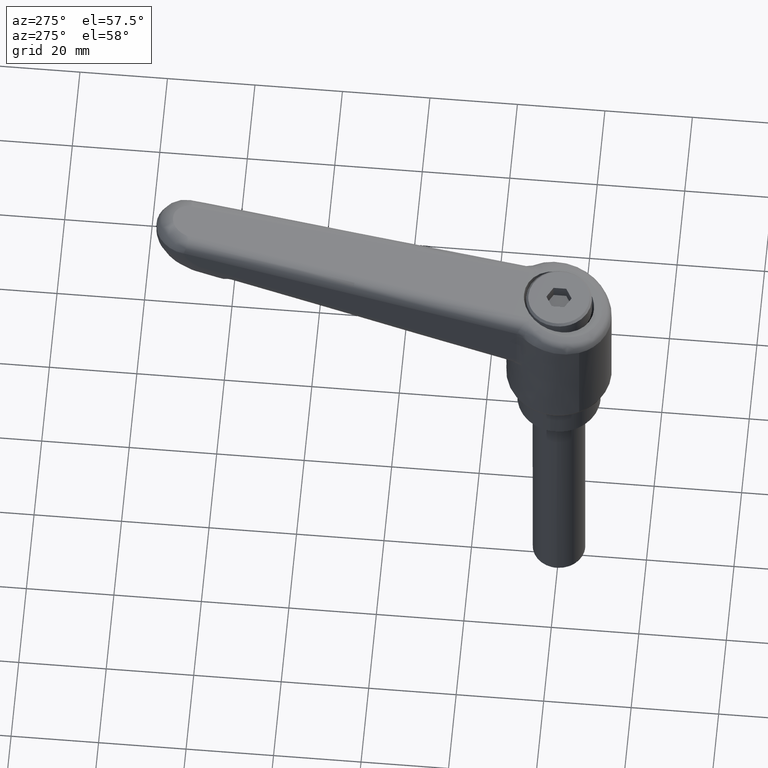
[diagram: clean part render]
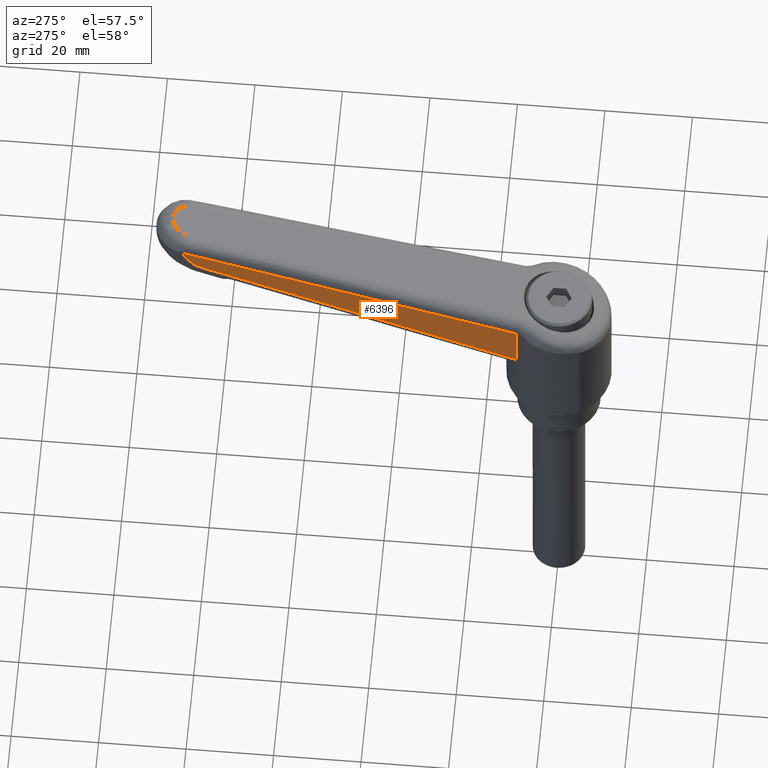
[diagram: same view with one face highlighted and labeled with its STEP entity id]
A machine part, auxiliary view. The second image highlights one B-rep face of the part: STEP entity #6396.
In plain terms, the highlighted face is a freeform B-spline surface patch.
Its self-contained STEP definition (entity closure, byte-faithful):
#4758=CARTESIAN_POINT('',(8.841669019642421,8.976546322690471,40.397985290362151));
#4759=VERTEX_POINT('',#4758);
#4860=CARTESIAN_POINT('',(8.958806641274091,8.973509853765771,39.498216051846100));
#4861=VERTEX_POINT('',#4860);
#4883=CARTESIAN_POINT('',(8.958806641274091,8.973509853765771,39.498216051846100));
#4884=CARTESIAN_POINT('',(8.958806641274091,8.973509853765771,39.803225784668513));
#4885=CARTESIAN_POINT('',(8.920304614572336,8.974507912339861,40.103219713197440));
#4886=CARTESIAN_POINT('',(8.841669019642412,8.976546322690471,40.397985290362151));
#4887=QUASI_UNIFORM_CURVE('',3,(#4883,#4884,#4885,#4886),.UNSPECIFIED.,.F.,.U.);
#4888=EDGE_CURVE('',#4861,#4759,#4887,.T.);
#4907=CARTESIAN_POINT('',(8.958806641274080,8.973509853765771,29.466439365079001));
#4908=VERTEX_POINT('',#4907);
#4924=CARTESIAN_POINT('',(8.958806641274080,8.973509853765771,29.466439365079001));
#4925=CARTESIAN_POINT('',(8.958806641274091,8.973509853765771,39.498216051846100));
#4926=QUASI_UNIFORM_CURVE('',1,(#4924,#4925),.UNSPECIFIED.,.F.,.U.);
#4927=EDGE_CURVE('',#4908,#4861,#4926,.T.);
#5551=CARTESIAN_POINT('',(81.389620479773200,7.095941295112780,55.828869491423298));
#5552=VERTEX_POINT('',#5551);
#5746=CARTESIAN_POINT('',(85.181394708208785,6.997650033486260,60.297485300990608));
#5747=VERTEX_POINT('',#5746);
#5775=CARTESIAN_POINT('',(85.181394708208785,6.997650033486113,60.297485300990608));
#5776=CARTESIAN_POINT('',(84.165023899907837,7.023996636160682,57.316877556528574));
#5777=CARTESIAN_POINT('',(81.389620479773200,7.095941295112628,55.828869491423291));
#5785=(BOUNDED_CURVE()B_SPLINE_CURVE(2,(#5775,#5776,#5777),.UNSPECIFIED.,.F.,.U.)CURVE()GEOMETRIC_REPRESENTATION_ITEM()QUASI_UNIFORM_CURVE()RATIONAL_B_SPLINE_CURVE((1.0,0.930502890215521,1.0))REPRESENTATION_ITEM(''));
#5786=EDGE_CURVE('',#5747,#5552,#5785,.T.);
#5856=CARTESIAN_POINT('',(81.389620479773200,7.095941295112780,55.828869491423298));
#5857=CARTESIAN_POINT('',(8.958806641274080,8.973509853765771,29.466439365079001));
#5858=QUASI_UNIFORM_CURVE('',1,(#5856,#5857),.UNSPECIFIED.,.F.,.U.);
#5859=EDGE_CURVE('',#5552,#4908,#5858,.T.);
#6229=CARTESIAN_POINT('',(85.181394708208785,6.997650033486260,60.950987970872312));
#6230=VERTEX_POINT('',#6229);
#6296=CARTESIAN_POINT('',(8.841669019642421,8.976546322690471,40.397985290362151));
#6297=CARTESIAN_POINT('',(85.181394708208785,6.997650033486260,60.950987970872312));
#6298=QUASI_UNIFORM_CURVE('',1,(#6296,#6297),.UNSPECIFIED.,.F.,.U.);
#6299=EDGE_CURVE('',#4759,#6230,#6298,.T.);
#6335=CARTESIAN_POINT('',(85.181394708208785,6.997650033486260,60.950987970872312));
#6336=CARTESIAN_POINT('',(85.181394708208785,6.997650033486260,60.297485300990608));
#6337=QUASI_UNIFORM_CURVE('',1,(#6335,#6336),.UNSPECIFIED.,.F.,.U.);
#6338=EDGE_CURVE('',#6230,#5747,#6337,.T.);
#6383=CARTESIAN_POINT('',(5.028499869459722,9.075392188500738,27.893787109906039));
#6384=CARTESIAN_POINT('',(88.994565905982498,6.898804114597866,27.893787109906039));
#6385=CARTESIAN_POINT('',(5.028499869459722,9.075392188500738,62.523641915008056));
#6386=CARTESIAN_POINT('',(88.994565905982498,6.898804114597866,62.523641915008056));
#6387=B_SPLINE_SURFACE_WITH_KNOTS('',1,1,((#6383,#6385),(#6384,#6386)),.UNSPECIFIED.,.F.,.F.,.U.,(2,2),(2,2),(0.0,83.994272312421160),(0.0,34.629854805102028),.UNSPECIFIED.);
#6388=ORIENTED_EDGE('',*,*,#4927,.T.);
#6389=ORIENTED_EDGE('',*,*,#4888,.T.);
#6390=ORIENTED_EDGE('',*,*,#6299,.T.);
#6391=ORIENTED_EDGE('',*,*,#6338,.T.);
#6392=ORIENTED_EDGE('',*,*,#5786,.T.);
#6393=ORIENTED_EDGE('',*,*,#5859,.T.);
#6394=EDGE_LOOP('',(#6388,#6389,#6390,#6391,#6392,#6393));
#6395=FACE_OUTER_BOUND('',#6394,.T.);
#6396=ADVANCED_FACE('',(#6395),#6387,.F.);